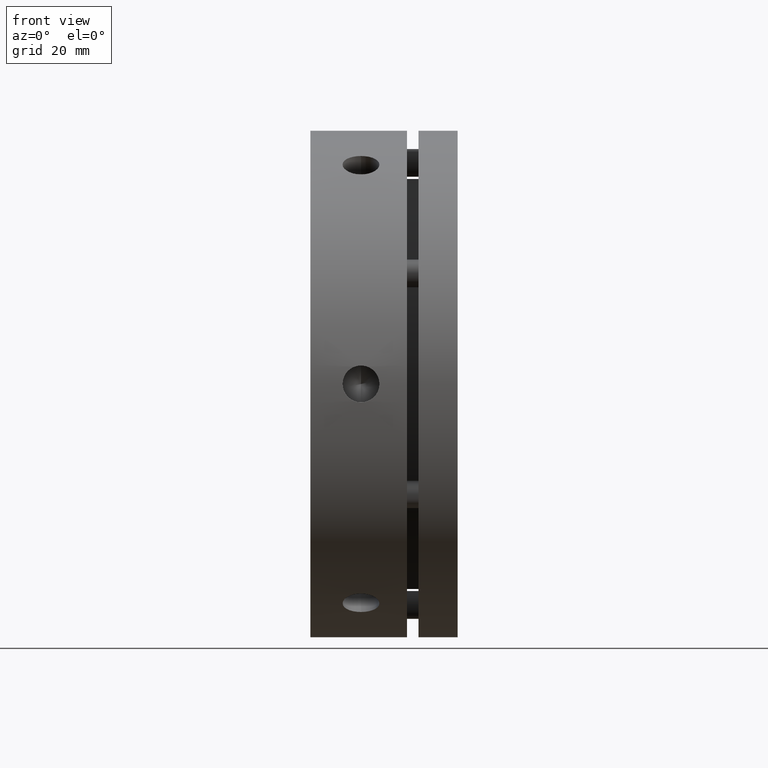
[diagram: clean part render]
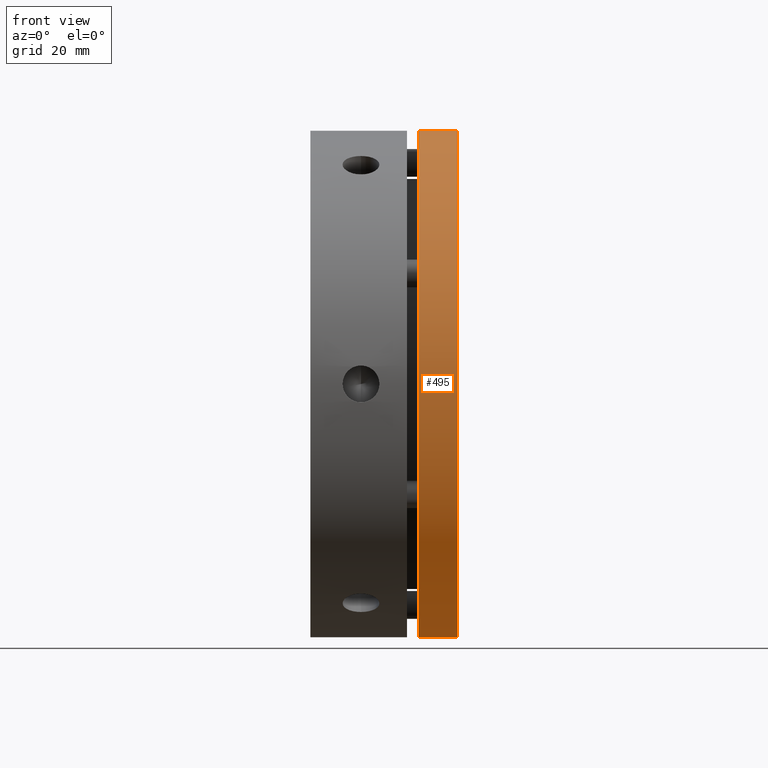
[diagram: same view with one face highlighted and labeled with its STEP entity id]
A machine part, front view. The second image highlights one B-rep face of the part: STEP entity #495.
In plain terms, the highlighted cylindrical surface (partial cylindrical patch) has radius 55 mm, axis along (1, 0, 0).
Its self-contained STEP definition (entity closure, byte-faithful):
#2 = VERTEX_POINT ( 'NONE', #4726 ) ;
#107 = ORIENTED_EDGE ( 'NONE', *, *, #3366, .T. ) ;
#180 = ORIENTED_EDGE ( 'NONE', *, *, #287, .T. ) ;
#183 = ORIENTED_EDGE ( 'NONE', *, *, #3354, .F. ) ;
#186 = ORIENTED_EDGE ( 'NONE', *, *, #372, .T. ) ;
#287 = EDGE_CURVE ( 'NONE', #2276, #2275, #2644, .T. ) ;
#372 = EDGE_CURVE ( 'NONE', #4588, #2, #2744, .T. ) ;
#495 = ADVANCED_FACE ( 'NONE', ( #639 ), #652, .T. ) ;
#639 = FACE_OUTER_BOUND ( 'NONE', #2454, .T. ) ;
#652 = CYLINDRICAL_SURFACE ( 'NONE', #4683, 55.00000000000000000 ) ;
#949 = LINE ( 'NONE', #1416, #951 ) ;
#951 = VECTOR ( 'NONE', #1417, 1000.000000000000000 ) ;
#956 = LINE ( 'NONE', #1435, #958 ) ;
#958 = VECTOR ( 'NONE', #1431, 1000.000000000000000 ) ;
#1236 = CARTESIAN_POINT ( 'NONE',  ( 31.99999999999998600, 6.735557395310442600E-015, 55.00000000000000000 ) ) ;
#1241 = CARTESIAN_POINT ( 'NONE',  ( 31.99999999999998600, 0.0000000000000000000, -55.00000000000000000 ) ) ;
#1416 = CARTESIAN_POINT ( 'NONE',  ( 15.99999999999998600, 6.735557395310442600E-015, 55.00000000000000000 ) ) ;
#1417 = DIRECTION ( 'NONE',  ( 1.000000000000000000, 0.0000000000000000000, 0.0000000000000000000 ) ) ;
#1431 = DIRECTION ( 'NONE',  ( 1.000000000000000000, 0.0000000000000000000, 0.0000000000000000000 ) ) ;
#1435 = CARTESIAN_POINT ( 'NONE',  ( 15.99999999999998600, 0.0000000000000000000, -55.00000000000000000 ) ) ;
#1885 = CARTESIAN_POINT ( 'NONE',  ( 23.49999999999999300, 6.735557395310442600E-015, 55.00000000000000000 ) ) ;
#2214 = AXIS2_PLACEMENT_3D ( 'NONE', #3517, #3518, #3519 ) ;
#2219 = AXIS2_PLACEMENT_3D ( 'NONE', #3148, #3149, #3150 ) ;
#2275 = VERTEX_POINT ( 'NONE', #1236 ) ;
#2276 = VERTEX_POINT ( 'NONE', #1241 ) ;
#2454 = EDGE_LOOP ( 'NONE', ( #183, #186, #107, #180 ) ) ;
#2644 = CIRCLE ( 'NONE', #2219, 55.00000000000000000 ) ;
#2744 = CIRCLE ( 'NONE', #2214, 55.00000000000000000 ) ;
#3148 = CARTESIAN_POINT ( 'NONE',  ( 31.99999999999998600, 0.0000000000000000000, 0.0000000000000000000 ) ) ;
#3149 = DIRECTION ( 'NONE',  ( -1.000000000000000000, -0.0000000000000000000, -0.0000000000000000000 ) ) ;
#3150 = DIRECTION ( 'NONE',  ( 0.0000000000000000000, 0.0000000000000000000, -1.000000000000000000 ) ) ;
#3354 = EDGE_CURVE ( 'NONE', #4588, #2275, #949, .T. ) ;
#3366 = EDGE_CURVE ( 'NONE', #2, #2276, #956, .T. ) ;
#3517 = CARTESIAN_POINT ( 'NONE',  ( 23.49999999999999300, 0.0000000000000000000, 0.0000000000000000000 ) ) ;
#3518 = DIRECTION ( 'NONE',  ( 1.000000000000000000, 0.0000000000000000000, 0.0000000000000000000 ) ) ;
#3519 = DIRECTION ( 'NONE',  ( 0.0000000000000000000, 0.0000000000000000000, -1.000000000000000000 ) ) ;
#3784 = DIRECTION ( 'NONE',  ( 0.0000000000000000000, 0.0000000000000000000, -1.000000000000000000 ) ) ;
#3786 = DIRECTION ( 'NONE',  ( 1.000000000000000000, 0.0000000000000000000, 0.0000000000000000000 ) ) ;
#3788 = CARTESIAN_POINT ( 'NONE',  ( 15.99999999999998600, 0.0000000000000000000, 0.0000000000000000000 ) ) ;
#4588 = VERTEX_POINT ( 'NONE', #1885 ) ;
#4683 = AXIS2_PLACEMENT_3D ( 'NONE', #3788, #3786, #3784 ) ;
#4726 = CARTESIAN_POINT ( 'NONE',  ( 23.49999999999999300, 0.0000000000000000000, -55.00000000000000000 ) ) ;